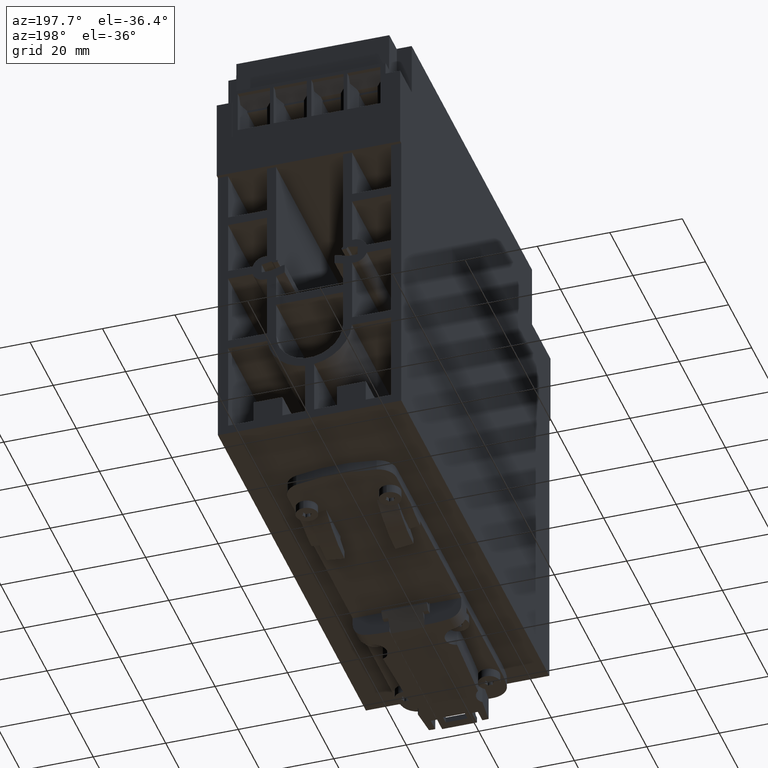
[diagram: clean part render]
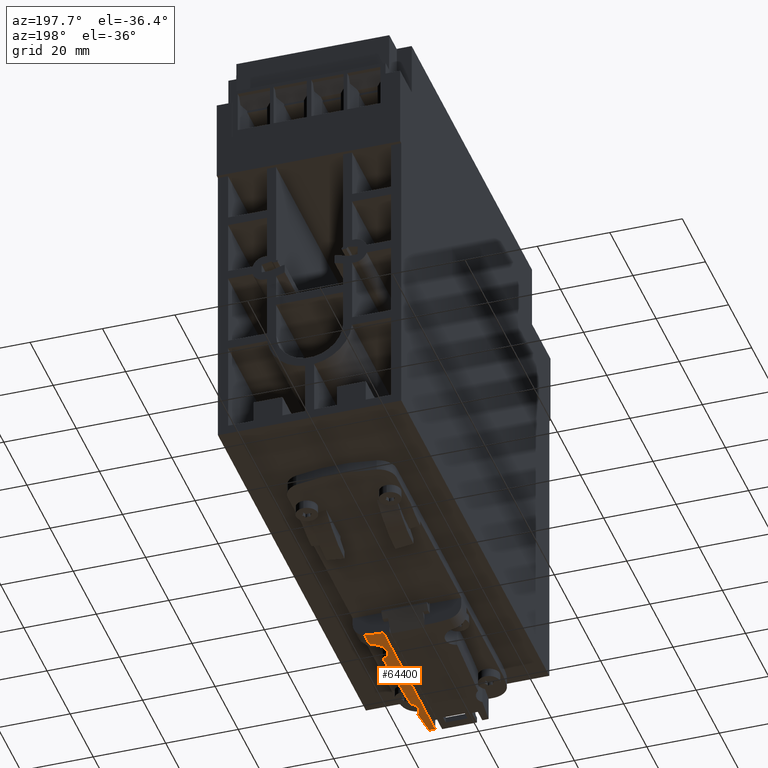
[diagram: same view with one face highlighted and labeled with its STEP entity id]
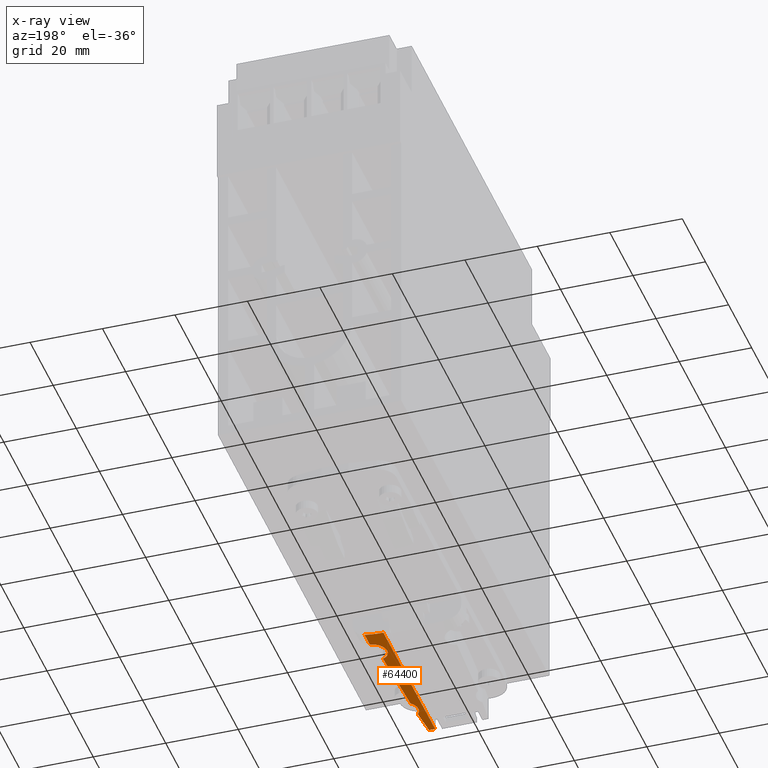
[diagram: x-ray of the same camera — body ghosted, the highlighted face saturated]
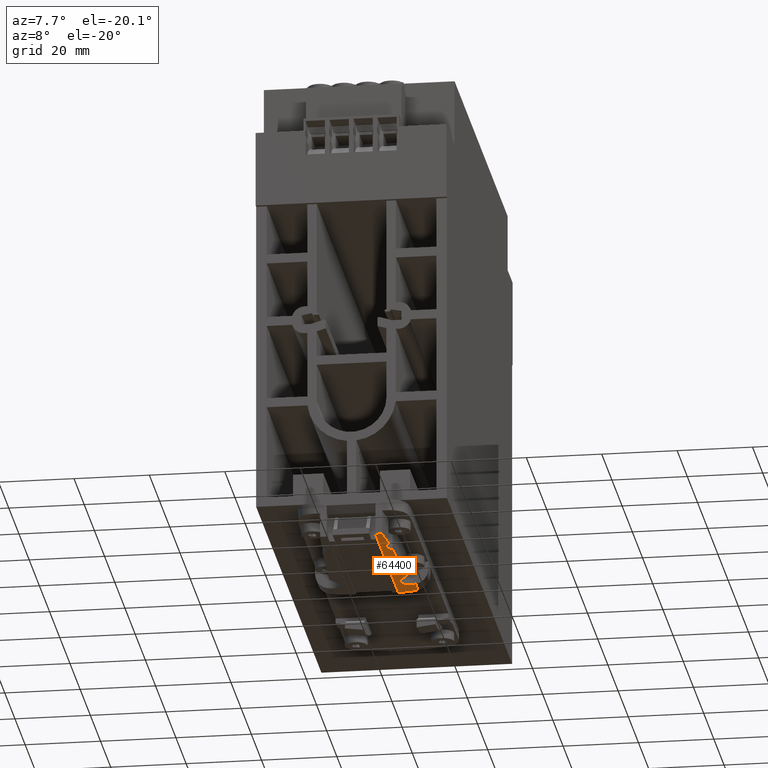
[diagram: same view with one face highlighted and labeled with its STEP entity id]
A machine part, auxiliary view. The second image highlights one B-rep face of the part: STEP entity #64400.
The next image is the same camera in x-ray: the body ghosted, the highlighted face saturated — about 0% of this face is hidden behind the body in this view.
A second angle (auxiliary view) of the same face is appended — the face is thin or edge-on in the first view.
In plain terms, the highlighted cylindrical surface (partial cylindrical patch) has radius 30 mm, axis along (0, -1, 0).
Its self-contained STEP definition (entity closure, byte-faithful):
#34700=CARTESIAN_POINT('',(6.79999999999999,12.4,18.4499999999998));
#34710=VERTEX_POINT('',#34700);
#53280=CARTESIAN_POINT('',(6.79999999999999,12.4,-22.5));
#53290=VERTEX_POINT('',#53280);
#53320=CARTESIAN_POINT('',(6.8,42.4,-22.5));
#53330=DIRECTION('',(0.,0.,1.));
#53340=DIRECTION('',(1.,0.,0.));
#53350=AXIS2_PLACEMENT_3D('',#53320,#53330,#53340);
#53360=CIRCLE('',#53350,30.);
#53370=CARTESIAN_POINT('',(11.9923076923077,12.8527507062264,-22.5));
#53380=VERTEX_POINT('',#53370);
#53390=EDGE_CURVE('',#53290,#53380,#53360,.T.);
#62160=CARTESIAN_POINT('',(8.51648376099853,12.4491455297478,22.35));
#62170=VERTEX_POINT('',#62160);
#62200=CARTESIAN_POINT('',(6.8,42.4,22.35));
#62210=DIRECTION('',(0.,0.,1.));
#62220=DIRECTION('',(1.,0.,0.));
#62230=AXIS2_PLACEMENT_3D('',#62200,#62210,#62220);
#62240=CIRCLE('',#62230,30.);
#62250=CARTESIAN_POINT('',(6.79999999999999,12.4,22.35));
#62260=VERTEX_POINT('',#62250);
#62270=EDGE_CURVE('',#62260,#62170,#62240,.T.);
#62670=CARTESIAN_POINT('',(6.79999999999999,12.4,-22.5));
#62680=DIRECTION('',(0.,0.,1.));
#62690=VECTOR('',#62680,1.);
#62700=LINE('',#62670,#62690);
#62710=EDGE_CURVE('',#34710,#62260,#62700,.T.);
#63070=CARTESIAN_POINT('',(6.8,42.4,-22.5));
#63080=DIRECTION('',(0.,0.,1.));
#63090=DIRECTION('',(1.,0.,0.));
#63100=AXIS2_PLACEMENT_3D('',#63070,#63080,#63090);
#63110=CYLINDRICAL_SURFACE('',#63100,30.);
#63120=ORIENTED_EDGE('',*,*,#62270,.F.);
#63130=CARTESIAN_POINT('',(-390.9,19.,-18.5));
#63140=DIRECTION('',(0.,-1.,0.));
#63150=DIRECTION('',(0.,0.,-1.));
#63160=AXIS2_PLACEMENT_3D('',#63130,#63140,#63150);
#63170=CYLINDRICAL_SURFACE('',#63160,401.5);
#63180=CARTESIAN_POINT('',(9.21199221675876,12.4971189758128,
14.856314010034));
#63190=CARTESIAN_POINT('',(9.15988531776563,12.4929159883245,
15.4813409586983));
#63200=CARTESIAN_POINT('',(9.10631407376638,12.4887318663781,
16.1062431371558));
#63210=CARTESIAN_POINT('',(9.05127941535789,12.4845902418907,
16.731010403007));
#63220=CARTESIAN_POINT('',(8.99624475694129,12.4804486174026,
17.3557776689504));
#63230=CARTESIAN_POINT('',(8.93974668414181,12.476349490737,
17.9804100221522));
#63240=CARTESIAN_POINT('',(8.88178622019473,12.4723177286357,
18.604897339683));
#63250=CARTESIAN_POINT('',(8.82382575624137,12.468285966534,
19.2293846572815));
#63260=CARTESIAN_POINT('',(8.76440290115058,12.4643215693288,
19.8537269392627));
#63270=CARTESIAN_POINT('',(8.70351877063217,12.4604506331348,
20.4779140812865));
#63280=CARTESIAN_POINT('',(8.64263464011541,12.4565796969409,
21.1021012232934));
#63290=CARTESIAN_POINT('',(8.58028923416539,12.4528022220351,
21.7261332255324));
#63300=CARTESIAN_POINT('',(8.51648376099891,12.4491455297474,
22.3499999999967));
#63310=B_SPLINE_CURVE_WITH_KNOTS('',3,(#63180,#63190,#63200,#63210,
#63220,#63230,#63240,#63250,#63260,#63270,#63280,#63290,#63300),
.UNSPECIFIED.,.F.,.F.,(4,3,3,3,4),(0.,1.88161596019884,3.7631943659863,
5.64471458200528,7.52615607687756),.UNSPECIFIED.);
#63320=SURFACE_CURVE('',#63310,(#63110,#63170),.CURVE_3D.);
#63330=CARTESIAN_POINT('',(9.21199221675927,12.4971189758195,
14.8563140100347));
#63340=VERTEX_POINT('',#63330);
#63350=EDGE_CURVE('',#63340,#62170,#63320,.T.);
#63360=ORIENTED_EDGE('',*,*,#63350,.T.);
#63370=CARTESIAN_POINT('',(11.8,19.,12.5));
#63380=DIRECTION('',(0.,-1.,0.));
#63390=DIRECTION('',(1.,0.,0.));
#63400=AXIS2_PLACEMENT_3D('',#63370,#63380,#63390);
#63410=CYLINDRICAL_SURFACE('',#63400,3.5);
#63420=CARTESIAN_POINT('',(9.2119922167592,12.4971189758194,
14.8563140100347));
#63430=CARTESIAN_POINT('',(8.89231564502613,12.4713335873722,
14.5052039914881));
#63440=CARTESIAN_POINT('',(8.64496070830859,12.4563800293903,
14.0891142664572));
#63450=CARTESIAN_POINT('',(8.48946141427881,12.4476091082922,
13.6359288148696));
#63460=CARTESIAN_POINT('',(8.33505079805723,12.4388995939497,
13.1859161940478));
#63470=CARTESIAN_POINT('',(8.27396438100949,12.4362094689361,
12.7073406714547));
#63480=CARTESIAN_POINT('',(8.31016736857437,12.4380342013597,
12.2334137951115));
#63490=CARTESIAN_POINT('',(8.34662222063227,12.4398716284622,
11.7561898054506));
#63500=CARTESIAN_POINT('',(8.48175687187197,12.4463568419604,
11.2898526614256));
#63510=CARTESIAN_POINT('',(8.70277116461486,12.4604031106778,
10.869916093798));
#63520=CARTESIAN_POINT('',(8.92579018514846,12.4745767871973,
10.446170458001));
#63530=CARTESIAN_POINT('',(9.23410709407361,12.4966139395804,
10.0728826428987));
#63540=CARTESIAN_POINT('',(9.6031272269612,12.5312457951542,
9.77534405491435));
#63550=B_SPLINE_CURVE_WITH_KNOTS('',3,(#63420,#63430,#63440,#63450,
#63460,#63470,#63480,#63490,#63500,#63510,#63520,#63530,#63540),
.UNSPECIFIED.,.F.,.F.,(4,3,3,3,4),(0.,1.4290543912816,2.85283973389682,
4.28184927705033,5.71087819009126),.UNSPECIFIED.);
#63560=SURFACE_CURVE('',#63550,(#63110,#63410),.CURVE_3D.);
#63570=CARTESIAN_POINT('',(9.60312722696179,12.5312457951546,
9.77534405491514));
#63580=VERTEX_POINT('',#63570);
#63590=EDGE_CURVE('',#63340,#63580,#63560,.T.);
#63600=ORIENTED_EDGE('',*,*,#63590,.F.);
#63610=CARTESIAN_POINT('',(-390.9,19.,-18.5));
#63620=DIRECTION('',(0.,-1.,0.));
#63630=DIRECTION('',(0.,0.,-1.));
#63640=AXIS2_PLACEMENT_3D('',#63610,#63620,#63630);
#63650=CYLINDRICAL_SURFACE('',#63640,401.5);
#63660=CARTESIAN_POINT('',(10.5342996994724,12.6333239048308,
-11.2368722444188));
#63670=CARTESIAN_POINT('',(10.5025896935877,12.6293458098273,
-9.48425485502687));
#63680=CARTESIAN_POINT('',(10.4594019143171,12.6239725744098,
-7.73184749612955));
#63690=CARTESIAN_POINT('',(10.4047407057077,12.617356657836,
-5.9798128160297));
#63700=CARTESIAN_POINT('',(10.3500789194254,12.6107406713437,
-4.22775962000123));
#63710=CARTESIAN_POINT('',(10.2839409571325,12.6028817364194,
-2.47600772218311));
#63720=CARTESIAN_POINT('',(10.2063346099497,12.5940126061045,
-0.724783101994234));
#63730=CARTESIAN_POINT('',(10.1287278364904,12.5851434270732,
1.02645113732621));
#63740=CARTESIAN_POINT('',(10.0396549103274,12.5752643828549,
2.77711650235583));
#63750=CARTESIAN_POINT('',(9.93912288779136,12.564686904687,
4.52710495364419));
#63760=CARTESIAN_POINT('',(9.8385888273263,12.5541092120983,
6.27712887972111));
#63770=CARTESIAN_POINT('',(9.72658664340953,12.5428322325831,
8.02661617819073));
#63780=CARTESIAN_POINT('',(9.60312722696183,12.5312457951543,
9.77534405491894));
#63790=B_SPLINE_CURVE_WITH_KNOTS('',3,(#63660,#63670,#63680,#63690,
#63700,#63710,#63720,#63730,#63740,#63750,#63760,#63770,#63780),
.UNSPECIFIED.,.F.,.F.,(4,3,3,3,4),(0.,5.25871798685744,10.5175815892494,
15.7763825718708,21.035509994106),.UNSPECIFIED.);
#63800=SURFACE_CURVE('',#63790,(#63110,#63650),.CURVE_3D.);
#63810=CARTESIAN_POINT('',(10.5342996994727,12.6333239048342,
-11.2368722444187));
#63820=VERTEX_POINT('',#63810);
#63830=EDGE_CURVE('',#63820,#63580,#63800,.T.);
#63840=ORIENTED_EDGE('',*,*,#63830,.T.);
#63850=CARTESIAN_POINT('',(11.8,19.,-14.5));
#63860=DIRECTION('',(0.,-1.,0.));
#63870=DIRECTION('',(1.,0.,0.));
#63880=AXIS2_PLACEMENT_3D('',#63850,#63860,#63870);
#63890=CYLINDRICAL_SURFACE('',#63880,3.5);
#63900=CARTESIAN_POINT('',(10.5342996994728,12.6333239048342,
-11.2368722444187));
#63910=CARTESIAN_POINT('',(10.1499998778599,12.5851125861176,
-11.3859342598044));
#63920=CARTESIAN_POINT('',(9.79615155752522,12.5483592998684,
-11.6006424716304));
#63930=CARTESIAN_POINT('',(9.48535189592324,12.5204269576173,
-11.8746611353382));
#63940=CARTESIAN_POINT('',(9.17391815887561,12.4924376294215,
-12.1492388360328));
#63950=CARTESIAN_POINT('',(8.91546367104202,12.4740330218434,
-12.4750203267207));
#63960=CARTESIAN_POINT('',(8.71917867823074,12.4614503824747,
-12.8391146989235));
#63970=CARTESIAN_POINT('',(8.33779701576447,12.4370023192177,
-13.5465499183793));
#63980=CARTESIAN_POINT('',(8.21192642254907,12.4328708565657,
-14.3644248194441));
#63990=CARTESIAN_POINT('',(8.3612741620636,12.4406538290491,
-15.1520464795615));
#64000=CARTESIAN_POINT('',(8.51092927618653,12.4484528197736,
-15.9412891545008));
#64010=CARTESIAN_POINT('',(8.93098061204716,12.4695017420346,
-16.6580795984995));
#64020=CARTESIAN_POINT('',(9.54144449834768,12.5255212252583,
-17.1737477528666));
#64030=CARTESIAN_POINT('',(9.85747500712595,12.5545219019273,
-17.440703543115));
#64040=CARTESIAN_POINT('',(10.2208289297611,12.5931674202494,
-17.6500122004288));
#64050=CARTESIAN_POINT('',(10.6041534683418,12.642170502718,
-17.7893694035062));
#64060=CARTESIAN_POINT('',(10.9888088342552,12.6913437142417,
-17.9292104273575));
#64070=CARTESIAN_POINT('',(11.3945233165549,12.7510659677584,
-17.9999757428376));
#64080=CARTESIAN_POINT('',(11.7997905624816,12.8195656838142,
-17.9999999937414));
#64090=B_SPLINE_CURVE_WITH_KNOTS('',3,(#63900,#63910,#63920,#63930,
#63940,#63950,#63960,#63970,#63980,#63990,#64000,#64010,#64020,#64030,
#64040,#64050,#64060,#64070,#64080),.UNSPECIFIED.,.F.,.F.,(4,3,3,3,3,3,4
),(0.,1.23928390105492,2.4789466967372,4.86560860602104,7.25439560188892
,8.49455414880312,9.7277176641783),.UNSPECIFIED.);
#64100=SURFACE_CURVE('',#64090,(#63110,#63890),.CURVE_3D.);
#64110=CARTESIAN_POINT('',(11.799790562482,12.8195656838143,
-17.9999999937414));
#64120=VERTEX_POINT('',#64110);
#64130=EDGE_CURVE('',#63820,#64120,#64100,.T.);
#64140=ORIENTED_EDGE('',*,*,#64130,.F.);
#64150=CARTESIAN_POINT('',(6.8,42.4,-18.));
#64160=DIRECTION('',(0.,0.,1.));
#64170=DIRECTION('',(1.,0.,0.));
#64180=AXIS2_PLACEMENT_3D('',#64150,#64160,#64170);
#64190=CIRCLE('',#64180,30.);
#64200=CARTESIAN_POINT('',(11.9923076923077,12.8527507062264,-18.));
#64210=VERTEX_POINT('',#64200);
#64220=EDGE_CURVE('',#64120,#64210,#64190,.T.);
#64230=ORIENTED_EDGE('',*,*,#64220,.F.);
#64240=CARTESIAN_POINT('',(11.9923076923077,12.8527507062264,-22.5));
#64250=DIRECTION('',(0.,0.,1.));
#64260=VECTOR('',#64250,1.);
#64270=LINE('',#64240,#64260);
#64280=EDGE_CURVE('',#53380,#64210,#64270,.T.);
#64290=ORIENTED_EDGE('',*,*,#64280,.T.);
#64300=ORIENTED_EDGE('',*,*,#53390,.T.);
#64310=CARTESIAN_POINT('',(6.79999999999999,12.4,-22.5));
#64320=DIRECTION('',(0.,0.,1.));
#64330=VECTOR('',#64320,1.);
#64340=LINE('',#64310,#64330);
#64350=EDGE_CURVE('',#53290,#34710,#64340,.T.);
#64360=ORIENTED_EDGE('',*,*,#64350,.F.);
#64370=ORIENTED_EDGE('',*,*,#62710,.F.);
#64380=EDGE_LOOP('',(#64370,#64360,#64300,#64290,#64230,#64140,#63840,
#63600,#63360,#63120));
#64390=FACE_OUTER_BOUND('',#64380,.T.);
#64400=ADVANCED_FACE('',(#64390),#63110,.T.);